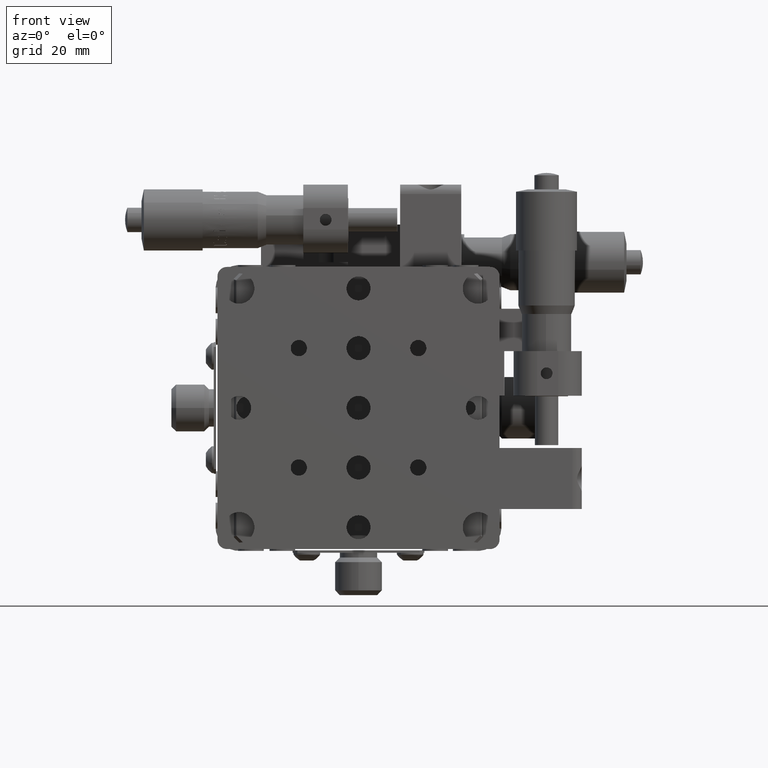
[diagram: clean part render]
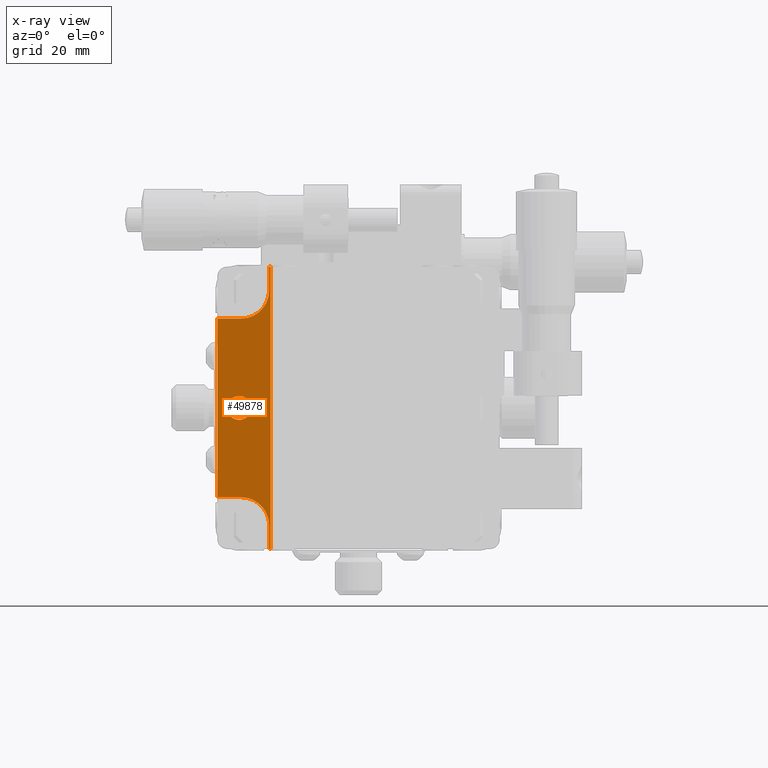
[diagram: x-ray — body ghosted, one internal face saturated and labeled with its STEP entity id]
A machine part, front view, then the same camera in x-ray: the body is ghosted and one INTERNAL B-rep face — a face not visible from any outside direction — is saturated and labeled: STEP entity #49878.
In plain terms, the highlighted planar face has unit normal (0, -1, 0).
Its self-contained STEP definition (entity closure, byte-faithful):
#910 = DIRECTION ( 'NONE',  ( 0.000000000000000000, 0.000000000000000000, -1.000000000000000000 ) ) ;
#954 = LINE ( 'NONE', #14253, #30082 ) ;
#1840 = CARTESIAN_POINT ( 'NONE',  ( -24.99999999999999645, 7.000000000000000000, 19.00000000000001776 ) ) ;
#1846 = EDGE_LOOP ( 'NONE', ( #5908, #31112 ) ) ;
#2070 = LINE ( 'NONE', #41447, #39844 ) ;
#2836 = ORIENTED_EDGE ( 'NONE', *, *, #24683, .F. ) ;
#4152 = DIRECTION ( 'NONE',  ( -0.000000000000000000, -0.000000000000000000, -1.000000000000000000 ) ) ;
#5839 = EDGE_CURVE ( 'NONE', #51984, #23216, #55307, .T. ) ;
#5908 = ORIENTED_EDGE ( 'NONE', *, *, #30283, .T. ) ;
#6295 = EDGE_CURVE ( 'NONE', #25809, #42617, #33253, .T. ) ;
#6420 = DIRECTION ( 'NONE',  ( -0.000000000000000000, -0.000000000000000000, -1.000000000000000000 ) ) ;
#7778 = CARTESIAN_POINT ( 'NONE',  ( -24.99999999999999645, 7.000000000000000000, 19.00000000000001776 ) ) ;
#8797 = EDGE_CURVE ( 'NONE', #26297, #56912, #23147, .T. ) ;
#9611 = ORIENTED_EDGE ( 'NONE', *, *, #50680, .F. ) ;
#9978 = ORIENTED_EDGE ( 'NONE', *, *, #49265, .F. ) ;
#11500 = DIRECTION ( 'NONE',  ( 0.000000000000000000, 0.000000000000000000, -1.000000000000000000 ) ) ;
#12044 = CARTESIAN_POINT ( 'NONE',  ( -18.99999999999999645, 7.000000000000000000, 25.00000000000000711 ) ) ;
#13261 = LINE ( 'NONE', #56397, #50666 ) ;
#13375 = AXIS2_PLACEMENT_3D ( 'NONE', #41611, #36985, #11500 ) ;
#14253 = CARTESIAN_POINT ( 'NONE',  ( -18.99999999999997513, 7.000000000000000000, 25.00000000000000711 ) ) ;
#14499 = DIRECTION ( 'NONE',  ( 0.000000000000000000, 0.000000000000000000, -1.000000000000000000 ) ) ;
#14568 = PLANE ( 'NONE',  #34924 ) ;
#15299 = AXIS2_PLACEMENT_3D ( 'NONE', #15346, #24289, #14499 ) ;
#15346 = CARTESIAN_POINT ( 'NONE',  ( -25.39999999999999858, 7.000000000000000000, -3.110602869834276865E-15 ) ) ;
#15354 = CARTESIAN_POINT ( 'NONE',  ( -25.39999999999999858, 7.000000000000000000, -2.552699999999995750 ) ) ;
#15858 = CARTESIAN_POINT ( 'NONE',  ( -25.00000000000000355, 7.000000000000000000, -19.00000000000000355 ) ) ;
#15888 = DIRECTION ( 'NONE',  ( -1.000000000000000000, 0.000000000000000000, -5.782411586589372430E-16 ) ) ;
#16248 = EDGE_CURVE ( 'NONE', #54667, #48777, #48216, .T. ) ;
#17649 = AXIS2_PLACEMENT_3D ( 'NONE', #51240, #32737, #19697 ) ;
#17825 = CARTESIAN_POINT ( 'NONE',  ( -30.00000000000000000, 7.000000000000000000, 19.00000000000001421 ) ) ;
#18001 = CARTESIAN_POINT ( 'NONE',  ( -18.69999999999999929, 7.000000000000000000, -30.00000000000000000 ) ) ;
#18061 = CIRCLE ( 'NONE', #15299, 2.552699999999992642 ) ;
#18198 = VECTOR ( 'NONE', #53802, 1000.000000000000000 ) ;
#19140 = DIRECTION ( 'NONE',  ( -1.000000000000000000, -0.000000000000000000, -0.000000000000000000 ) ) ;
#19446 = FACE_BOUND ( 'NONE', #1846, .T. ) ;
#19611 = VECTOR ( 'NONE', #910, 1000.000000000000000 ) ;
#19697 = DIRECTION ( 'NONE',  ( 0.000000000000000000, 0.000000000000000000, 1.000000000000000000 ) ) ;
#19720 = DIRECTION ( 'NONE',  ( 0.000000000000000000, -1.000000000000000000, 0.000000000000000000 ) ) ;
#19887 = ORIENTED_EDGE ( 'NONE', *, *, #8797, .F. ) ;
#21285 = AXIS2_PLACEMENT_3D ( 'NONE', #50608, #28625, #46283 ) ;
#22864 = CARTESIAN_POINT ( 'NONE',  ( -30.00000000000000000, 7.000000000000000000, 30.00000000000000000 ) ) ;
#23147 = CIRCLE ( 'NONE', #21285, 6.000000000000005329 ) ;
#23216 = VERTEX_POINT ( 'NONE', #30724 ) ;
#23575 = ORIENTED_EDGE ( 'NONE', *, *, #55959, .F. ) ;
#24289 = DIRECTION ( 'NONE',  ( 0.000000000000000000, -1.000000000000000000, 0.000000000000000000 ) ) ;
#24502 = ORIENTED_EDGE ( 'NONE', *, *, #40059, .F. ) ;
#24683 = EDGE_CURVE ( 'NONE', #56912, #48777, #35335, .T. ) ;
#25809 = VERTEX_POINT ( 'NONE', #1840 ) ;
#25925 = DIRECTION ( 'NONE',  ( -1.000000000000000000, -0.000000000000000000, -0.000000000000000000 ) ) ;
#26297 = VERTEX_POINT ( 'NONE', #15858 ) ;
#26924 = LINE ( 'NONE', #22864, #18198 ) ;
#28625 = DIRECTION ( 'NONE',  ( 0.000000000000000000, 1.000000000000000000, 0.000000000000000000 ) ) ;
#30082 = VECTOR ( 'NONE', #4152, 1000.000000000000000 ) ;
#30283 = EDGE_CURVE ( 'NONE', #42367, #56348, #18061, .T. ) ;
#30724 = CARTESIAN_POINT ( 'NONE',  ( -18.99999999999997513, 7.000000000000000000, 30.00000000000000000 ) ) ;
#31112 = ORIENTED_EDGE ( 'NONE', *, *, #33781, .T. ) ;
#31422 = CARTESIAN_POINT ( 'NONE',  ( -30.00000000000000000, 7.000000000000000000, -30.00000000000000000 ) ) ;
#32442 = CIRCLE ( 'NONE', #17649, 6.000000000000008882 ) ;
#32737 = DIRECTION ( 'NONE',  ( 0.000000000000000000, 1.000000000000000000, 0.000000000000000000 ) ) ;
#33253 = LINE ( 'NONE', #7778, #54357 ) ;
#33309 = CARTESIAN_POINT ( 'NONE',  ( -30.00000000000000000, 7.000000000000000000, 30.00000000000000000 ) ) ;
#33781 = EDGE_CURVE ( 'NONE', #56348, #42367, #55871, .T. ) ;
#33950 = CARTESIAN_POINT ( 'NONE',  ( -30.00000000000000000, 7.000000000000000000, -19.00000000000000000 ) ) ;
#34711 = CARTESIAN_POINT ( 'NONE',  ( -18.99999999999998934, 7.000000000000000000, -25.00000000000000000 ) ) ;
#34924 = AXIS2_PLACEMENT_3D ( 'NONE', #37119, #19720, #54749 ) ;
#35335 = LINE ( 'NONE', #53545, #19611 ) ;
#36012 = ORIENTED_EDGE ( 'NONE', *, *, #5839, .F. ) ;
#36985 = DIRECTION ( 'NONE',  ( 0.000000000000000000, -1.000000000000000000, 0.000000000000000000 ) ) ;
#37119 = CARTESIAN_POINT ( 'NONE',  ( -30.00000000000000000, 7.000000000000000000, 30.00000000000000000 ) ) ;
#38258 = ORIENTED_EDGE ( 'NONE', *, *, #49280, .T. ) ;
#38280 = ORIENTED_EDGE ( 'NONE', *, *, #6295, .F. ) ;
#38937 = CARTESIAN_POINT ( 'NONE',  ( -25.39999999999999858, 7.000000000000000000, 2.552699999999989977 ) ) ;
#39819 = CARTESIAN_POINT ( 'NONE',  ( -18.69999999999999929, 7.000000000000000000, 30.00000000000000000 ) ) ;
#39844 = VECTOR ( 'NONE', #6420, 1000.000000000000000 ) ;
#40059 = EDGE_CURVE ( 'NONE', #42617, #48048, #26924, .T. ) ;
#41214 = EDGE_LOOP ( 'NONE', ( #24502, #38280, #9978, #23575, #36012, #38258, #53294, #2836, #19887, #9611 ) ) ;
#41447 = CARTESIAN_POINT ( 'NONE',  ( -18.69999999999999929, 7.000000000000000000, 30.00000000000000000 ) ) ;
#41611 = CARTESIAN_POINT ( 'NONE',  ( -25.39999999999999858, 7.000000000000000000, -3.110602869834276865E-15 ) ) ;
#42367 = VERTEX_POINT ( 'NONE', #15354 ) ;
#42617 = VERTEX_POINT ( 'NONE', #17825 ) ;
#43947 = DIRECTION ( 'NONE',  ( 1.000000000000000000, -0.000000000000000000, -5.782411586589372430E-16 ) ) ;
#46283 = DIRECTION ( 'NONE',  ( 0.000000000000000000, 0.000000000000000000, 1.000000000000000000 ) ) ;
#46594 = VECTOR ( 'NONE', #25925, 1000.000000000000000 ) ;
#48048 = VERTEX_POINT ( 'NONE', #33950 ) ;
#48216 = LINE ( 'NONE', #31422, #46594 ) ;
#48480 = CARTESIAN_POINT ( 'NONE',  ( -18.99999999999998934, 7.000000000000000000, -30.00000000000000000 ) ) ;
#48777 = VERTEX_POINT ( 'NONE', #48480 ) ;
#49265 = EDGE_CURVE ( 'NONE', #52896, #25809, #32442, .T. ) ;
#49280 = EDGE_CURVE ( 'NONE', #51984, #54667, #2070, .T. ) ;
#49878 = ADVANCED_FACE ( 'NONE', ( #19446, #55050 ), #14568, .F. ) ;
#50608 = CARTESIAN_POINT ( 'NONE',  ( -25.00000000000000355, 7.000000000000000000, -24.99999999999999645 ) ) ;
#50666 = VECTOR ( 'NONE', #43947, 1000.000000000000000 ) ;
#50680 = EDGE_CURVE ( 'NONE', #48048, #26297, #13261, .T. ) ;
#51240 = CARTESIAN_POINT ( 'NONE',  ( -25.00000000000000000, 7.000000000000000000, 25.00000000000000355 ) ) ;
#51984 = VERTEX_POINT ( 'NONE', #39819 ) ;
#52896 = VERTEX_POINT ( 'NONE', #12044 ) ;
#53294 = ORIENTED_EDGE ( 'NONE', *, *, #16248, .T. ) ;
#53545 = CARTESIAN_POINT ( 'NONE',  ( -18.99999999999998934, 7.000000000000000000, -25.00000000000000000 ) ) ;
#53802 = DIRECTION ( 'NONE',  ( -0.000000000000000000, -0.000000000000000000, -1.000000000000000000 ) ) ;
#54357 = VECTOR ( 'NONE', #15888, 1000.000000000000000 ) ;
#54667 = VERTEX_POINT ( 'NONE', #18001 ) ;
#54749 = DIRECTION ( 'NONE',  ( 0.000000000000000000, -0.000000000000000000, -1.000000000000000000 ) ) ;
#55050 = FACE_OUTER_BOUND ( 'NONE', #41214, .T. ) ;
#55307 = LINE ( 'NONE', #33309, #56182 ) ;
#55871 = CIRCLE ( 'NONE', #13375, 2.552699999999992642 ) ;
#55959 = EDGE_CURVE ( 'NONE', #23216, #52896, #954, .T. ) ;
#56182 = VECTOR ( 'NONE', #19140, 1000.000000000000000 ) ;
#56348 = VERTEX_POINT ( 'NONE', #38937 ) ;
#56397 = CARTESIAN_POINT ( 'NONE',  ( -25.00000000000000355, 7.000000000000000000, -19.00000000000000355 ) ) ;
#56912 = VERTEX_POINT ( 'NONE', #34711 ) ;